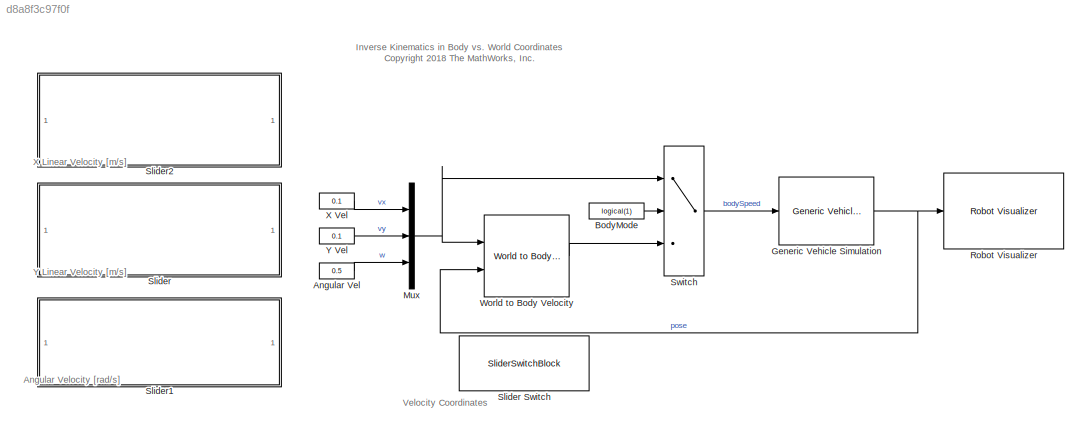
MODEL slx_d8a8f3c97f0f
KIND model
CONFIG AbsTol = auto
CONFIG EnableMultiTasking = on
CONFIG FixedStep = 0.01
CONFIG MaxStep = auto
CONFIG MinStep = auto
CONFIG PreLoadFcn = sampleTime = 0.05;
CONFIG RelTol = 1e-3
CONFIG SampleTimeConstraint = Unconstrained
CONFIG Solver = VariableStepAuto
CONFIG SolverName = VariableStepAuto
CONFIG StartTime = 0.0
CONFIG StopTime = inf
BLOCK [Constant] Angular Vel
  Value = 0.5
BLOCK [Constant] BodyMode
  OutDataTypeStr = boolean
  Value = logical(1)
BLOCK [Reference] Generic Vehicle Simulation  REF=mobileRoboticsLib/Utilities/Generic Vehicle Simulation
  Ports = [1, 1]
  SourceBlock = mobileRoboticsLib/Utilities/Generic Vehicle Simulation
  SourceProductName = Mobile Robotics Simulation Library
  SourceType = Generic Vehicle Simulation
BLOCK [Mux] Mux
  DisplayOption = bar
  Inputs = 3
  Ports = [3, 1]
BLOCK [Reference] Robot Visualizer  REF=mobileRoboticsLib/Environments/Robot Visualizer
  Ports = [1]
  Priority = 99
  SourceBlock = mobileRoboticsLib/Environments/Robot Visualizer
  SourceProductName = Ground Vehicles Library
  SourceType = Visualizer2D
BLOCK [SubSystem] Slider
  DialogController = hmiCreateDDGDialog
  IsWebBlock = on
  MaskHideContents = on
  Ports = []
  RequestExecContextInheritance = off
BLOCK [SliderSwitchBlock] Slider Switch
  LabelPosition = Hide
  WebBlockId = 1028
BLOCK [SubSystem] Slider1
  DialogController = hmiCreateDDGDialog
  IsWebBlock = on
  MaskHideContents = on
  Ports = []
  RequestExecContextInheritance = off
BLOCK [SubSystem] Slider2
  DialogController = hmiCreateDDGDialog
  IsWebBlock = on
  MaskHideContents = on
  Ports = []
  RequestExecContextInheritance = off
BLOCK [Switch] Switch
  Criteria = u2 > Threshold
  InputSameDT = off
  SaturateOnIntegerOverflow = off
BLOCK [Reference] World to Body Velocity  REF=mobileRoboticsLib/Utilities/World to Body Velocity
  Ports = [2, 1]
  SourceBlock = mobileRoboticsLib/Utilities/World to Body Velocity
  SourceProductName = Ground Vehicles Library
  SourceType = World to Body Velocity
BLOCK [Constant] X Vel
  Value = 0.1
BLOCK [Constant] Y Vel
  Value = 0.1
ANNOTATION (root): Angular Velocity [rad/s]
ANNOTATION (root): Inverse Kinematics in Body vs. World Coordinates <copyright redacted>
ANNOTATION (root): Velocity Coordinates
ANNOTATION (root): X Linear Velocity [m/s]
ANNOTATION (root): Y Linear Velocity [m/s]
LINE Angular Vel:1 -> Mux:3
LINE BodyMode:1 -> Switch:2
NET Generic Vehicle Simulation:1 -> Robot Visualizer:1, World to Body Velocity:2
NET Mux:1 -> Switch:1, World to Body Velocity:1
LINE Switch:1 -> Generic Vehicle Simulation:1
LINE World to Body Velocity:1 -> Switch:3
LINE X Vel:1 -> Mux:1
LINE Y Vel:1 -> Mux:2
note: NET lines group one-source signal fan-out (src -> all destinations, sorted); 1:1 wires keep LINE
